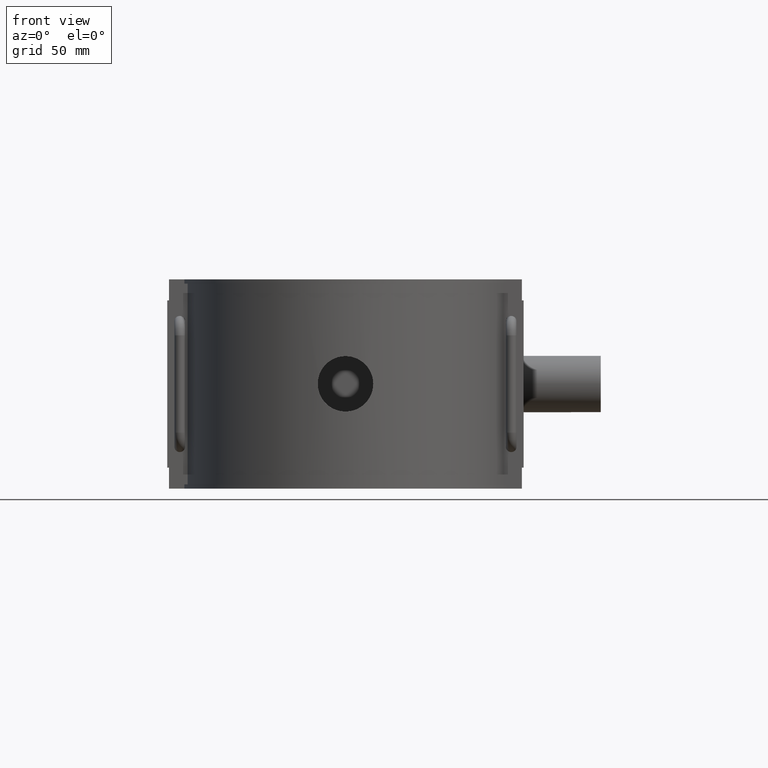
[diagram: clean part render]
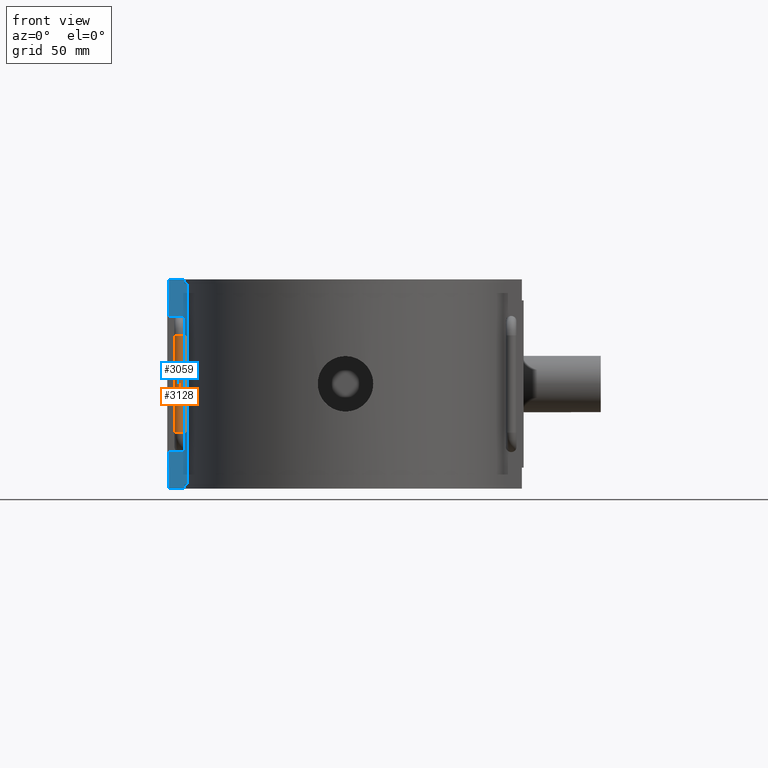
[diagram: same view with the hole feature highlighted: cylindrical wall and planar end face, labeled with their STEP entity ids]
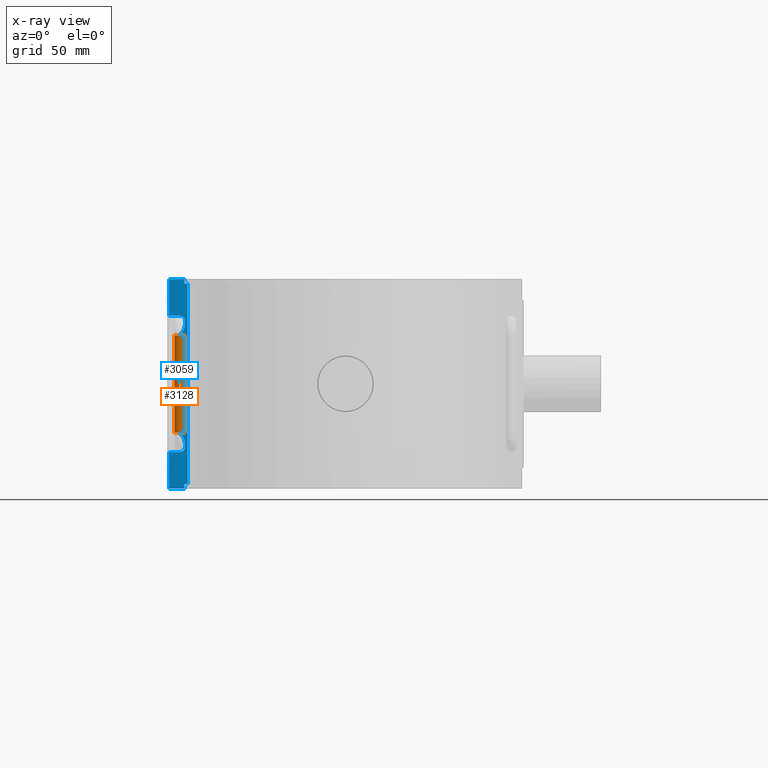
[diagram: x-ray of the same camera — body ghosted, the hole faces saturated]
A machine part, front view. The highlighted faces form one hole feature of diameter 6 mm: the cylindrical wall (entity #3128, orange) and its adjacent planar end face (entity #3059, blue) — they share a circular edge in the B-rep.
The next image is the same camera in x-ray (body ghosted, the hole faces saturated) — the bore reads through the body.
Wall:
#123=LINE('',#5364,#402);
#402=VECTOR('',#3746,54.7999999999999);
#776=CIRCLE('',#3357,3.);
#780=CIRCLE('',#3362,3.);
#986=FACE_OUTER_BOUND('',#1204,.T.);
#1204=EDGE_LOOP('',(#2642,#2643,#2644,#2645));
#1439=VERTEX_POINT('',#5350);
#1440=VERTEX_POINT('',#5363);
#1775=EDGE_CURVE('',#1440,#1439,#123,.T.);
#1918=EDGE_CURVE('',#1440,#1440,#776,.T.);
#1928=EDGE_CURVE('',#1439,#1439,#780,.T.);
#2642=ORIENTED_EDGE('',*,*,#1928,.F.);
#2643=ORIENTED_EDGE('',*,*,#1775,.F.);
#2644=ORIENTED_EDGE('',*,*,#1918,.T.);
#2645=ORIENTED_EDGE('',*,*,#1775,.T.);
#2992=CYLINDRICAL_SURFACE('',#3388,3.);
#3128=ADVANCED_FACE('',(#986),#2992,.T.);
#3357=AXIS2_PLACEMENT_3D('',#5925,#3995,#3996);
#3362=AXIS2_PLACEMENT_3D('',#6003,#4005,#4006);
#3388=AXIS2_PLACEMENT_3D('',#6086,#4071,#4072);
#3746=DIRECTION('',(0.,3.24152707919754E-16,1.));
#3995=DIRECTION('center_axis',(0.,6.12323399573677E-17,1.));
#3996=DIRECTION('ref_axis',(1.,0.,0.));
#4005=DIRECTION('center_axis',(0.,6.12323399573677E-17,1.));
#4006=DIRECTION('ref_axis',(1.,0.,0.));
#4071=DIRECTION('center_axis',(0.,3.24152707919754E-16,1.));
#4072=DIRECTION('ref_axis',(1.,0.,0.));
#5350=CARTESIAN_POINT('',(-93.5,-20.,27.3999999999999));
#5363=CARTESIAN_POINT('',(-93.5,-20.,-27.4));
#5364=CARTESIAN_POINT('',(-93.5,-20.,27.3999999999999));
#5925=CARTESIAN_POINT('Origin',(-93.5,-22.9999999999995,-27.4));
#6003=CARTESIAN_POINT('Origin',(-93.5,-22.9999999999994,27.3999999999999));
#6086=CARTESIAN_POINT('Origin',(-93.5,-22.9999999999994,27.3999999999999));
End face:
#111=LINE('',#5322,#390);
#112=LINE('',#5325,#391);
#117=LINE('',#5337,#396);
#118=LINE('',#5339,#397);
#119=LINE('',#5341,#398);
#120=LINE('',#5343,#399);
#121=LINE('',#5345,#400);
#122=LINE('',#5347,#401);
#123=LINE('',#5364,#402);
#124=LINE('',#5381,#403);
#125=LINE('',#5383,#404);
#126=LINE('',#5384,#405);
#390=VECTOR('',#3724,2.36);
#391=VECTOR('',#3727,1.86858273192826);
#396=VECTOR('',#3738,113.28);
#397=VECTOR('',#3739,1.86858273192826);
#398=VECTOR('',#3740,2.36);
#399=VECTOR('',#3741,8.6514195157679);
#400=VECTOR('',#3742,20.6);
#401=VECTOR('',#3743,6.02433467297777);
#402=VECTOR('',#3746,54.7999999999999);
#403=VECTOR('',#3749,6.02433467297777);
#404=VECTOR('',#3750,20.6);
#405=VECTOR('',#3751,8.6514195157679);
#623=PLANE('',#3283);
#751=CIRCLE('',#3284,3.);
#752=CIRCLE('',#3285,3.);
#917=FACE_OUTER_BOUND('',#1112,.T.);
#1112=EDGE_LOOP('',(#2313,#2314,#2315,#2316,#2317,#2318,#2319,#2320,#2321,
#2322,#2323,#2324,#2325,#2326,#2327,#2328));
#1298=B_SPLINE_CURVE_WITH_KNOTS('',3,(#5351,#5352,#5353,#5354,#5355,#5356,
#5357,#5358,#5359,#5360,#5361,#5362),.UNSPECIFIED.,.F.,.F.,(4,2,2,2,2,4),
(1.55418267469211,1.6414383672911,1.76844964601289,1.89546092473468,2.10094201058331,
2.30642309643194),.UNSPECIFIED.);
#1299=B_SPLINE_CURVE_WITH_KNOTS('',3,(#5366,#5367,#5368,#5369,#5370,#5371,
#5372,#5373,#5374,#5375,#5376,#5377),.UNSPECIFIED.,.F.,.F.,(4,2,2,2,2,4),
(0.,0.205481085848634,0.410962171697267,0.537973450419058,0.664984729140848,
0.752240421739824),.UNSPECIFIED.);
#1424=VERTEX_POINT('',#5315);
#1427=VERTEX_POINT('',#5320);
#1428=VERTEX_POINT('',#5324);
#1432=VERTEX_POINT('',#5336);
#1433=VERTEX_POINT('',#5338);
#1434=VERTEX_POINT('',#5340);
#1435=VERTEX_POINT('',#5342);
#1436=VERTEX_POINT('',#5344);
#1437=VERTEX_POINT('',#5346);
#1438=VERTEX_POINT('',#5348);
#1439=VERTEX_POINT('',#5350);
#1440=VERTEX_POINT('',#5363);
#1441=VERTEX_POINT('',#5365);
#1442=VERTEX_POINT('',#5378);
#1443=VERTEX_POINT('',#5380);
#1444=VERTEX_POINT('',#5382);
#1760=EDGE_CURVE('',#1424,#1427,#111,.T.);
#1761=EDGE_CURVE('',#1427,#1428,#112,.T.);
#1767=EDGE_CURVE('',#1428,#1432,#117,.T.);
#1768=EDGE_CURVE('',#1432,#1433,#118,.T.);
#1769=EDGE_CURVE('',#1433,#1434,#119,.T.);
#1770=EDGE_CURVE('',#1435,#1434,#120,.T.);
#1771=EDGE_CURVE('',#1436,#1435,#121,.T.);
#1772=EDGE_CURVE('',#1436,#1437,#122,.T.);
#1773=EDGE_CURVE('',#1437,#1438,#751,.T.);
#1774=EDGE_CURVE('',#1438,#1439,#1298,.T.);
#1775=EDGE_CURVE('',#1440,#1439,#123,.T.);
#1776=EDGE_CURVE('',#1440,#1441,#1299,.T.);
#1777=EDGE_CURVE('',#1441,#1442,#752,.T.);
#1778=EDGE_CURVE('',#1442,#1443,#124,.T.);
#1779=EDGE_CURVE('',#1444,#1443,#125,.T.);
#1780=EDGE_CURVE('',#1424,#1444,#126,.T.);
#2313=ORIENTED_EDGE('',*,*,#1760,.T.);
#2314=ORIENTED_EDGE('',*,*,#1761,.T.);
#2315=ORIENTED_EDGE('',*,*,#1767,.T.);
#2316=ORIENTED_EDGE('',*,*,#1768,.T.);
#2317=ORIENTED_EDGE('',*,*,#1769,.T.);
#2318=ORIENTED_EDGE('',*,*,#1770,.F.);
#2319=ORIENTED_EDGE('',*,*,#1771,.F.);
#2320=ORIENTED_EDGE('',*,*,#1772,.T.);
#2321=ORIENTED_EDGE('',*,*,#1773,.T.);
#2322=ORIENTED_EDGE('',*,*,#1774,.T.);
#2323=ORIENTED_EDGE('',*,*,#1775,.F.);
#2324=ORIENTED_EDGE('',*,*,#1776,.T.);
#2325=ORIENTED_EDGE('',*,*,#1777,.T.);
#2326=ORIENTED_EDGE('',*,*,#1778,.T.);
#2327=ORIENTED_EDGE('',*,*,#1779,.F.);
#2328=ORIENTED_EDGE('',*,*,#1780,.F.);
#3059=ADVANCED_FACE('',(#917),#623,.T.);
#3283=AXIS2_PLACEMENT_3D('',#5335,#3736,#3737);
#3284=AXIS2_PLACEMENT_3D('',#5349,#3744,#3745);
#3285=AXIS2_PLACEMENT_3D('',#5379,#3747,#3748);
#3724=DIRECTION('',(0.,0.,1.));
#3727=DIRECTION('',(1.,0.,0.));
#3736=DIRECTION('center_axis',(0.,-1.,0.));
#3737=DIRECTION('ref_axis',(1.,0.,0.));
#3738=DIRECTION('',(0.,0.,1.));
#3739=DIRECTION('',(-1.,0.,0.));
#3740=DIRECTION('',(0.,0.,1.));
#3741=DIRECTION('',(1.,0.,0.));
#3742=DIRECTION('',(0.,0.,1.));
#3743=DIRECTION('',(1.,0.,7.37158929503087E-16));
#3744=DIRECTION('center_axis',(0.,1.,0.));
#3745=DIRECTION('ref_axis',(-1.,0.,0.));
#3746=DIRECTION('',(0.,3.24152707919754E-16,1.));
#3747=DIRECTION('center_axis',(0.,1.,0.));
#3748=DIRECTION('ref_axis',(-1.,0.,0.));
#3749=DIRECTION('',(-1.,0.,0.));
#3750=DIRECTION('',(0.,0.,1.));
#3751=DIRECTION('',(-1.,0.,0.));
#5315=CARTESIAN_POINT('',(-90.8485804842321,-20.,-59.));
#5320=CARTESIAN_POINT('',(-90.8485804842321,-20.,-56.64));
#5322=CARTESIAN_POINT('',(-90.8485804842321,-20.,-59.));
#5324=CARTESIAN_POINT('',(-88.9799977523039,-20.,-56.64));
#5325=CARTESIAN_POINT('',(-49.75,-20.,-56.64));
#5335=CARTESIAN_POINT('Origin',(-99.5,-20.,0.));
#5336=CARTESIAN_POINT('',(-88.9799977523039,-20.,56.64));
#5337=CARTESIAN_POINT('',(-88.9799977523039,-20.,0.));
#5338=CARTESIAN_POINT('',(-90.8485804842321,-20.,56.64));
#5339=CARTESIAN_POINT('',(-49.75,-20.,56.64));
#5340=CARTESIAN_POINT('',(-90.8485804842321,-20.,59.));
#5341=CARTESIAN_POINT('',(-90.8485804842321,-20.,59.));
#5342=CARTESIAN_POINT('',(-99.5,-20.,59.));
#5343=CARTESIAN_POINT('',(-99.5,-20.,59.));
#5344=CARTESIAN_POINT('',(-99.5,-20.,38.4));
#5345=CARTESIAN_POINT('',(-99.5,-20.,0.));
#5346=CARTESIAN_POINT('',(-93.4756653270222,-20.,38.4));
#5347=CARTESIAN_POINT('',(-96.4878326635111,-20.,38.4));
#5348=CARTESIAN_POINT('',(-90.5929075566291,-20.,34.5695136140564));
#5349=CARTESIAN_POINT('Origin',(-93.4756653270222,-20.,35.4));
#5350=CARTESIAN_POINT('',(-93.5,-20.,27.3999999999999));
#5351=CARTESIAN_POINT('Ctrl Pts',(-90.5929075566291,-20.,34.5695136140564));
#5352=CARTESIAN_POINT('Ctrl Pts',(-90.5281744318221,-20.,34.259817704623));
#5353=CARTESIAN_POINT('Ctrl Pts',(-90.5,-20.,33.9358503070612));
#5354=CARTESIAN_POINT('Ctrl Pts',(-90.5,-20.,33.2216270693253));
#5355=CARTESIAN_POINT('Ctrl Pts',(-90.5580680938667,-20.,32.7627013613539));
#5356=CARTESIAN_POINT('Ctrl Pts',(-90.7771836493012,-20.,31.867336720585));
#5357=CARTESIAN_POINT('Ctrl Pts',(-90.9370980571854,-20.,31.4306208843288));
#5358=CARTESIAN_POINT('Ctrl Pts',(-91.389168796984,-20.,30.41870270221));
#5359=CARTESIAN_POINT('Ctrl Pts',(-91.770333637417,-20.,29.773838829126));
#5360=CARTESIAN_POINT('Ctrl Pts',(-92.6179526808834,-20.,28.5365468681763));
#5361=CARTESIAN_POINT('Ctrl Pts',(-93.0805634898982,-20.,27.9414902061385));
#5362=CARTESIAN_POINT('Ctrl Pts',(-93.5,-20.,27.3999999999999));
#5363=CARTESIAN_POINT('',(-93.5,-20.,-27.4));
#5364=CARTESIAN_POINT('',(-93.5,-20.,27.3999999999999));
#5365=CARTESIAN_POINT('',(-90.592907556629,-20.,-34.5695136140564));
#5366=CARTESIAN_POINT('Ctrl Pts',(-93.5,-20.,-27.4));
#5367=CARTESIAN_POINT('Ctrl Pts',(-93.0805634898982,-20.,-27.9414902061386));
#5368=CARTESIAN_POINT('Ctrl Pts',(-92.6179526808835,-20.,-28.5365468681764));
#5369=CARTESIAN_POINT('Ctrl Pts',(-91.770333637417,-20.,-29.7738388291262));
#5370=CARTESIAN_POINT('Ctrl Pts',(-91.389168796984,-20.,-30.4187027022101));
#5371=CARTESIAN_POINT('Ctrl Pts',(-90.9370980571854,-20.,-31.430620884329));
#5372=CARTESIAN_POINT('Ctrl Pts',(-90.7771836493012,-20.,-31.8673367205852));
#5373=CARTESIAN_POINT('Ctrl Pts',(-90.5580680938667,-20.,-32.7627013613541));
#5374=CARTESIAN_POINT('Ctrl Pts',(-90.5,-20.,-33.2216270693254));
#5375=CARTESIAN_POINT('Ctrl Pts',(-90.5,-20.,-33.9358503070613));
#5376=CARTESIAN_POINT('Ctrl Pts',(-90.5281744318221,-20.,-34.2598177046231));
#5377=CARTESIAN_POINT('Ctrl Pts',(-90.592907556629,-20.,-34.5695136140564));
#5378=CARTESIAN_POINT('',(-93.4756653270222,-20.,-38.4));
#5379=CARTESIAN_POINT('Origin',(-93.4756653270222,-20.,-35.4));
#5380=CARTESIAN_POINT('',(-99.5,-20.,-38.4));
#5381=CARTESIAN_POINT('',(-99.5,-20.,-38.4));
#5382=CARTESIAN_POINT('',(-99.5,-20.,-59.));
#5383=CARTESIAN_POINT('',(-99.5,-20.,0.));
#5384=CARTESIAN_POINT('',(-99.5,-20.,-59.));